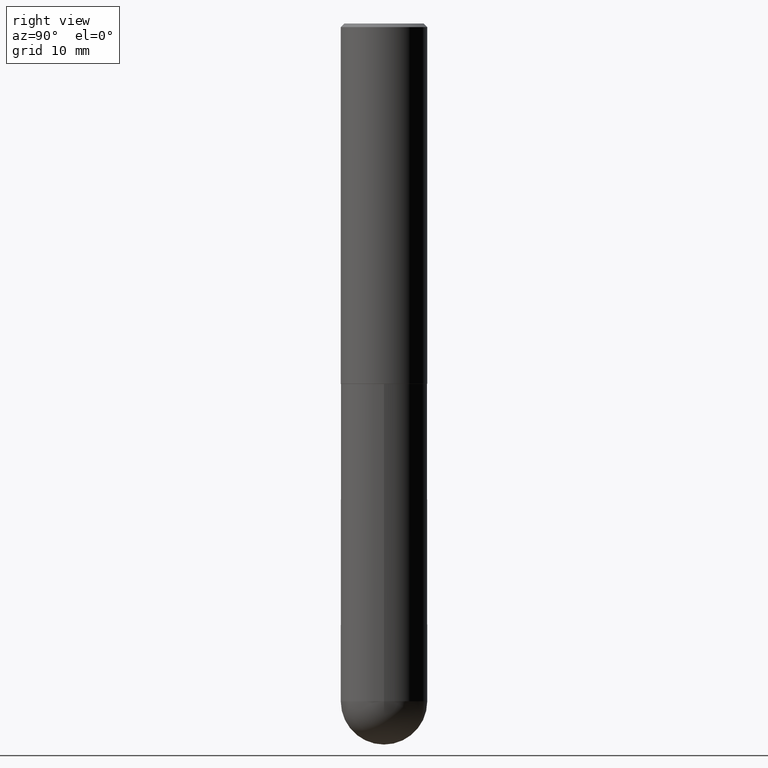
[diagram: clean part render]
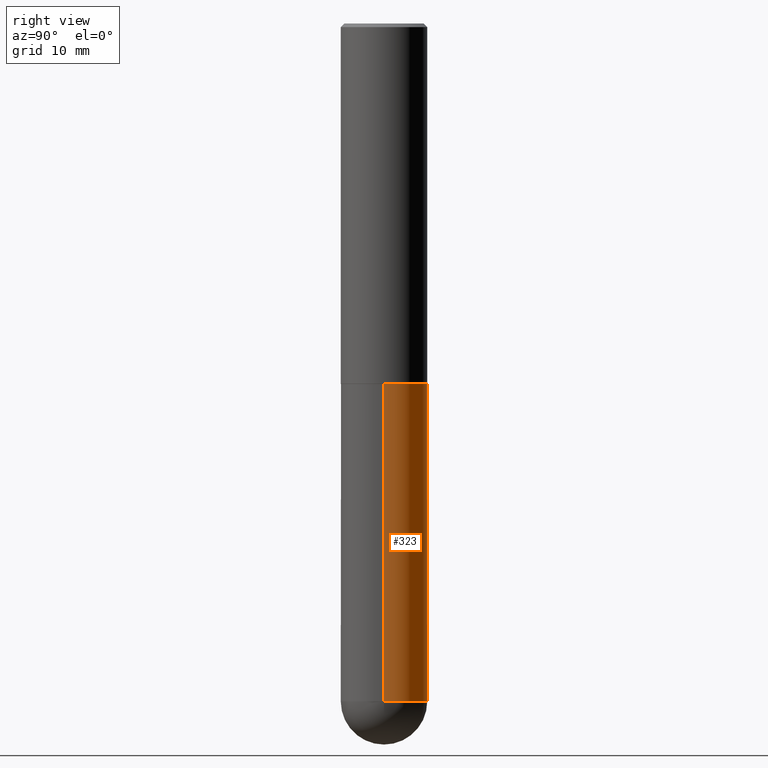
[diagram: same view with one face highlighted and labeled with its STEP entity id]
A machine part, right view. The second image highlights one B-rep face of the part: STEP entity #323.
In plain terms, the highlighted cylindrical surface (partial cylindrical patch) has radius 5.9995 mm, axis along (-0, 0, 1).
Its self-contained STEP definition (entity closure, byte-faithful):
#10 = CIRCLE ( 'NONE', #225, 0.2361999999999999933 ) ;
#14 = EDGE_CURVE ( 'NONE', #230, #406, #198, .T. ) ;
#18 = CARTESIAN_POINT ( 'NONE',  ( 0.000000000000000000, 0.000000000000000000, 0.000000000000000000 ) ) ;
#20 = EDGE_CURVE ( 'NONE', #348, #406, #328, .T. ) ;
#23 = EDGE_CURVE ( 'NONE', #375, #161, #308, .T. ) ;
#25 = CARTESIAN_POINT ( 'NONE',  ( 9.050190957929953666E-29, -1.292127413879071357E-14, -3.700800000000000090 ) ) ;
#29 = ORIENTED_EDGE ( 'NONE', *, *, #300, .F. ) ;
#35 = CARTESIAN_POINT ( 'NONE',  ( -0.2361999999999999933, 1.678301941865356591E-15, -1.161852468318208757E-29 ) ) ;
#41 = EDGE_CURVE ( 'NONE', #161, #348, #10, .T. ) ;
#55 = AXIS2_PLACEMENT_3D ( 'NONE', #25, #118, #222 ) ;
#56 = CARTESIAN_POINT ( 'NONE',  ( -0.2361999999999999933, -8.218825635286368613E-15, -3.700800000000000090 ) ) ;
#74 = DIRECTION ( 'NONE',  ( -2.445468806185136597E-29, 3.491481338843145583E-15, 1.000000000000000000 ) ) ;
#84 = DIRECTION ( 'NONE',  ( -2.445468806185136597E-29, 3.491481338843145583E-15, 1.000000000000000000 ) ) ;
#87 = CYLINDRICAL_SURFACE ( 'NONE', #115, 0.2361999999999999933 ) ;
#106 = LINE ( 'NONE', #246, #264 ) ;
#115 = AXIS2_PLACEMENT_3D ( 'NONE', #18, #84, #281 ) ;
#118 = DIRECTION ( 'NONE',  ( -2.445468806185136597E-29, 3.491481338843145583E-15, 1.000000000000000000 ) ) ;
#150 = CARTESIAN_POINT ( 'NONE',  ( 4.813905344975441835E-29, -6.872981015512731707E-15, -1.968500000000000139 ) ) ;
#159 = EDGE_LOOP ( 'NONE', ( #257, #267, #268, #29, #354 ) ) ;
#161 = VERTEX_POINT ( 'NONE', #185 ) ;
#173 = DIRECTION ( 'NONE',  ( 1.000000000000000000, -6.982962677686265133E-15, 0.000000000000000000 ) ) ;
#185 = CARTESIAN_POINT ( 'NONE',  ( 1.649375784469585666E-15, 0.2361999999999869759, -3.700800000000000978 ) ) ;
#188 = AXIS2_PLACEMENT_3D ( 'NONE', #150, #382, #235 ) ;
#198 = CIRCLE ( 'NONE', #188, 0.2361999999999999933 ) ;
#203 = CARTESIAN_POINT ( 'NONE',  ( 9.050190957929953666E-29, -1.292127413879071357E-14, -3.700800000000000090 ) ) ;
#222 = DIRECTION ( 'NONE',  ( 1.000000000000000000, -6.982962677686265133E-15, 0.000000000000000000 ) ) ;
#225 = AXIS2_PLACEMENT_3D ( 'NONE', #203, #74, #173 ) ;
#230 = VERTEX_POINT ( 'NONE', #234 ) ;
#234 = CARTESIAN_POINT ( 'NONE',  ( 0.2361999999999999933, -8.522356799982228232E-15, -1.968500000000000139 ) ) ;
#235 = DIRECTION ( 'NONE',  ( 1.000000000000000000, -6.982962677686269077E-15, 0.000000000000000000 ) ) ;
#246 = CARTESIAN_POINT ( 'NONE',  ( 0.2361999999999999933, -1.649375784469496131E-15, 1.151752954443000088E-29 ) ) ;
#249 = VECTOR ( 'NONE', #318, 39.37007874015748143 ) ;
#253 = CARTESIAN_POINT ( 'NONE',  ( -0.2361999999999999933, -8.218825635286365458E-15, -1.968500000000000139 ) ) ;
#257 = ORIENTED_EDGE ( 'NONE', *, *, #41, .T. ) ;
#264 = VECTOR ( 'NONE', #361, 39.37007874015748143 ) ;
#267 = ORIENTED_EDGE ( 'NONE', *, *, #20, .T. ) ;
#268 = ORIENTED_EDGE ( 'NONE', *, *, #14, .F. ) ;
#281 = DIRECTION ( 'NONE',  ( 1.000000000000000000, -6.982962677686266711E-15, 4.876176775795936353E-29 ) ) ;
#300 = EDGE_CURVE ( 'NONE', #375, #230, #106, .T. ) ;
#308 = CIRCLE ( 'NONE', #55, 0.2361999999999999933 ) ;
#318 = DIRECTION ( 'NONE',  ( -2.445468806185136877E-29, 3.491481338843145188E-15, 1.000000000000000000 ) ) ;
#323 = ADVANCED_FACE ( 'NONE', ( #374 ), #87, .T. ) ;
#328 = LINE ( 'NONE', #35, #249 ) ;
#348 = VERTEX_POINT ( 'NONE', #56 ) ;
#354 = ORIENTED_EDGE ( 'NONE', *, *, #23, .T. ) ;
#361 = DIRECTION ( 'NONE',  ( -2.445468806185136877E-29, 3.491481338843145188E-15, 1.000000000000000000 ) ) ;
#374 = FACE_OUTER_BOUND ( 'NONE', #159, .T. ) ;
#375 = VERTEX_POINT ( 'NONE', #399 ) ;
#382 = DIRECTION ( 'NONE',  ( -2.445468806185136597E-29, 3.491481338843145583E-15, 1.000000000000000000 ) ) ;
#399 = CARTESIAN_POINT ( 'NONE',  ( 0.2361999999999999933, -1.154650336162122153E-14, -3.700800000000000090 ) ) ;
#406 = VERTEX_POINT ( 'NONE', #253 ) ;